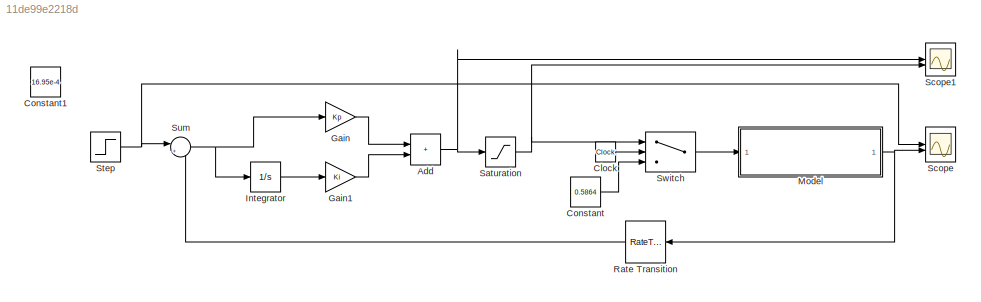
MODEL slx_11de99e2218d
KIND model
CONFIG AbsTol = auto
CONFIG EnableMultiTasking = off
CONFIG FixedStep = auto
CONFIG MaxStep = auto
CONFIG MinStep = auto
CONFIG RelTol = 1e-3
CONFIG SampleTimeConstraint = Unconstrained
CONFIG SolverName = ode14x
CONFIG StartTime = 0.0
CONFIG StopTime = 10
WORKSPACE source: mxarray member
WORKSPACE Ki = 200
WORKSPACE Kp = 5000
BLOCK [Sum] Add
  IconShape = rectangular
BLOCK [Clock] Clock
BLOCK [Constant] Constant
  Value = 0.5864
BLOCK [Constant] Constant1
  Commented = on
  Value = 16.95e-4
BLOCK [Gain] Gain
  Gain = Kp
BLOCK [Gain] Gain1
  Gain = Ki
BLOCK [Integrator] Integrator
BLOCK [ModelReference] Model
  ModelNameDialog = EAF_single_phase.slx
  ModelReferenceVersion = 1.22
BLOCK [RateTransition] Rate Transition
  NameLocation = top
BLOCK [Saturate] Saturation
  LowerLimit = -1.2
  UpperLimit = 1.2
BLOCK [Scope] Scope
  ActiveDisplayYMaximum = 0.011395881922085443
  ActiveDisplayYMinimum = -0.0012662091024539378
  Floating = off
  GraphicalSettings = {"AxesScalingProperties":{"AlignXAxis":"Center","AlignYAxis":"Center","AutoScaleXAxisLimits":false,"AxesScaling":"Manual","AxesScalingNumUpdates":10,"ExpandOnly":true,"ScaleAxesLimitsAtStop":false,"XAxisDataRange":100,"YAxisDataRange":80},"DisplayProperties":{"ColorOrder":["auto","auto","auto","auto","auto","auto","auto","auto","auto","auto","auto","auto","auto","auto","auto","auto","auto","auto",...<+2123ch>
  LayoutDimensionsString = [1,1]
  MultipleDisplayCache = [{"MaxYLimMag":0.011395881922085443,"MaxYLimReal":0.011395881922085443,"MinYLimMag":0,"MinYLimReal":-0.0012662091024539378,"PlotAsMagnitudePhase":false,"ShowGrid":true,"ShowLegend":true,"Title":"%<SignalLabel>","YLabel":""}]
  NumInputPorts = 2
  ScopeFrameLocation = window
  ShowLegend = on
  WasSavedAsWebScope = on
  WindowPosition = [1314.000000,38.000000,1247.000000,1531.000000,]
BLOCK [Scope] Scope1
  ActiveDisplayYMaximum = 1.4824944415910792
  ActiveDisplayYMinimum = -4.8589834493197337
  DataLoggingVariableName = ScopeData1
  Floating = off
  GraphicalSettings = {"Style":{"BackgroundColor":[0.12941176470588237,0.12941176470588237,0.12941176470588237],"AxesColor":[0.07058823529411765,0.07058823529411765,0.07058823529411765],"LabelsColor":[0.8509803921568627,0.8509803921568627,0.8509803921568627],"PreserveColors":false,"Visible":[true,true],"LineStyle":["-","-"],"LineWidth":[1.5,1.5],"BarWidth":[0.9,0.9],"LineColor":["auto","auto"],"LineFaceAlpha":[1,1],"Li...<+2108ch>
  MultipleDisplayCache = [{"MaxYLimMag":4.8589834493197337,"MaxYLimReal":1.4824944415910792,"MinYLimMag":0,"MinYLimReal":-4.8589834493197337,"PlotAsMagnitudePhase":false,"ShowGrid":true,"ShowLegend":true,"Title":"%<SignalLabel>","YLabel":""}]
  NumInputPorts = 2
  ScopeFrameLocation = window
  ShowLegend = on
  WasSavedAsWebScope = on
  WindowPosition = [67.000000,38.000000,1247.000000,1531.000000,]
BLOCK [Step] Step
  After = 23.95e-4
  Before = 16.95e-4
  SampleTime = 0
  Time = 5
BLOCK [Sum] Sum
  Inputs = |+-
BLOCK [Switch] Switch
  Criteria = u2 > Threshold
  InputSameDT = off
  SaturateOnIntegerOverflow = off
  Threshold = 0.5
NET Add:1 -> Saturation:1, Scope1:1
LINE Clock:1 -> Switch:2
LINE Constant:1 -> Switch:3
LINE Gain1:1 -> Add:2
LINE Gain:1 -> Add:1
LINE Integrator:1 -> Gain1:1
NET Model:1 -> Rate Transition:1, Scope:2
LINE Rate Transition:1 -> Sum:2
NET Saturation:1 -> Scope1:2, Switch:1
NET Step:1 -> Scope:1, Sum:1
NET Sum:1 -> Gain:1, Integrator:1
LINE Switch:1 -> Model:1
note: NET lines group one-source signal fan-out (src -> all destinations, sorted); 1:1 wires keep LINE
